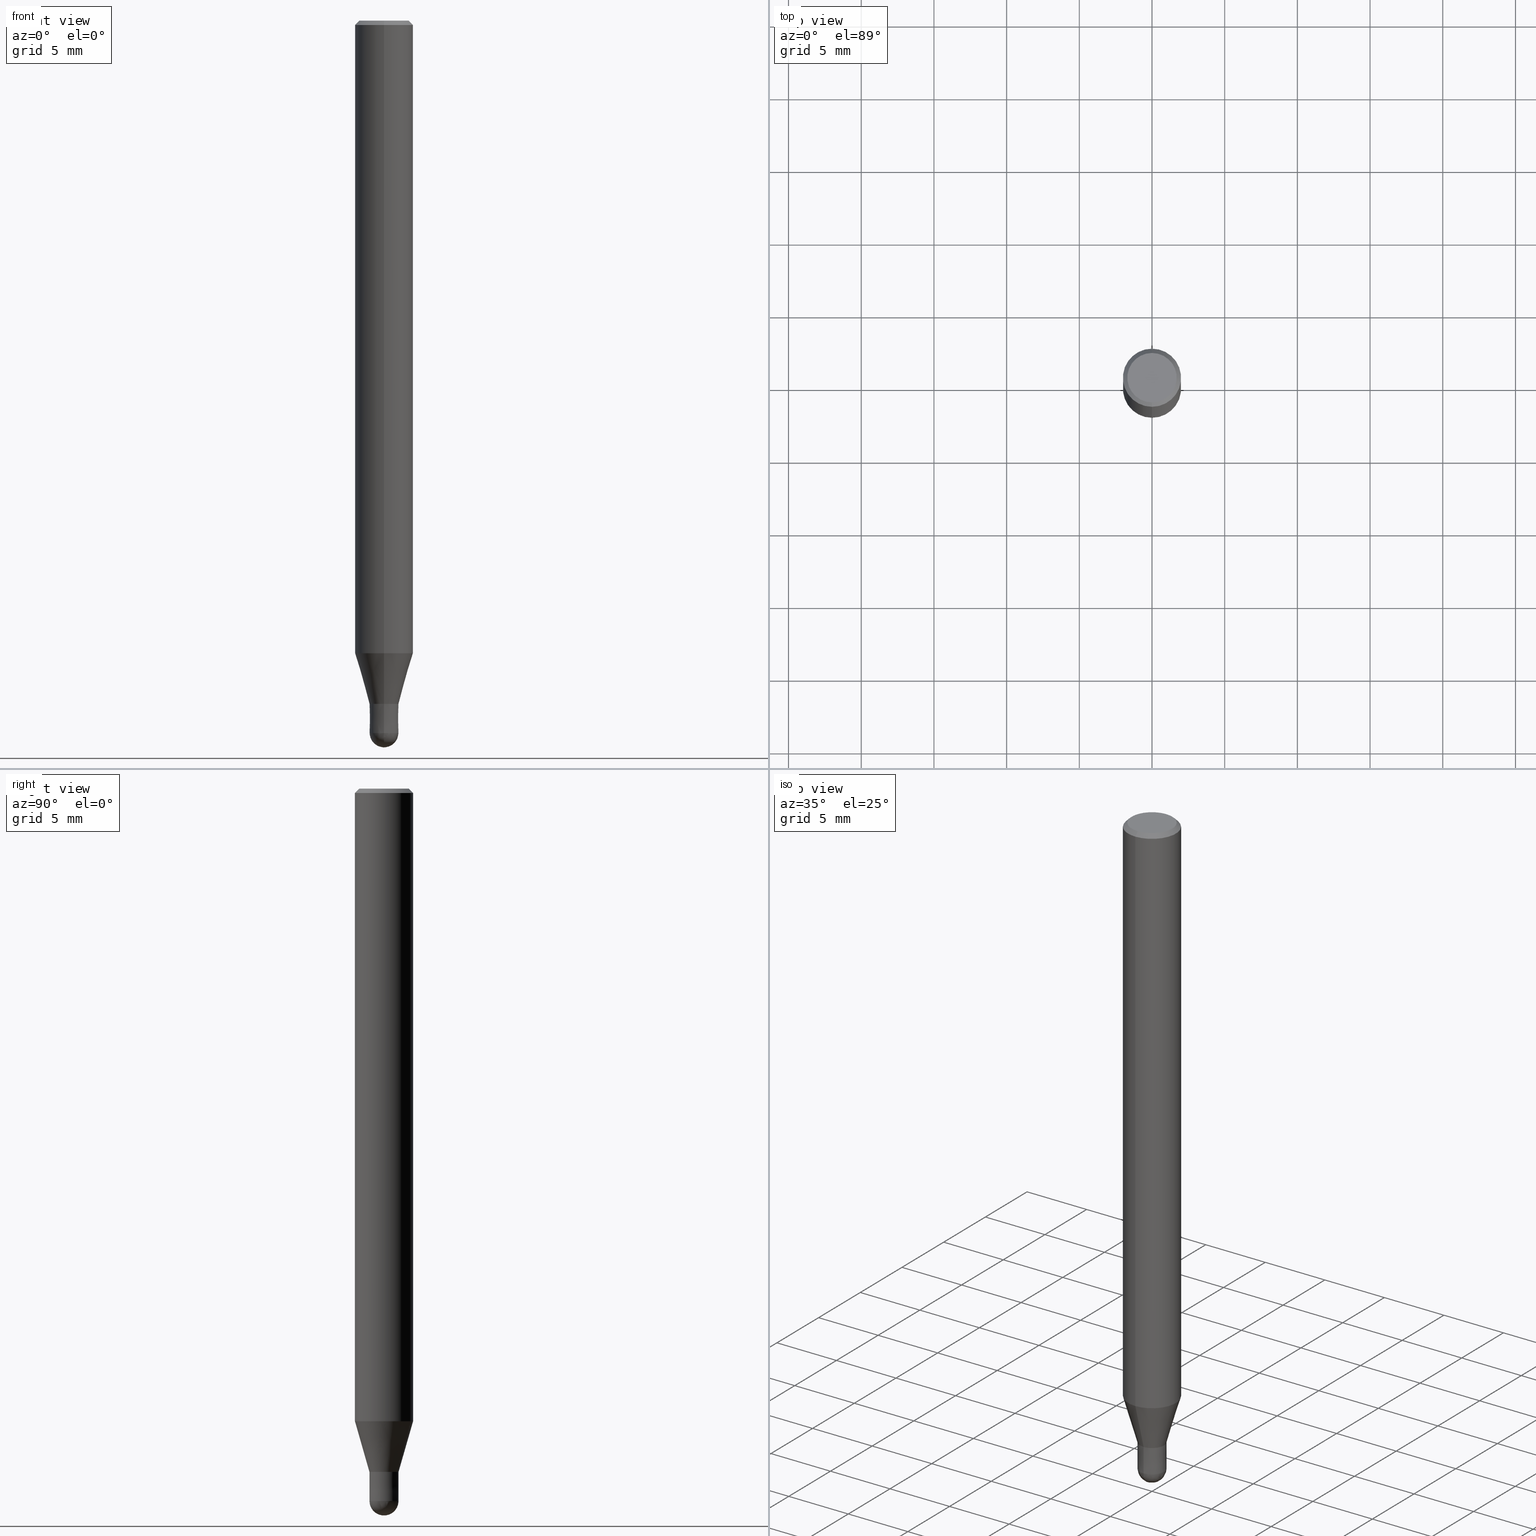
[diagram: canonical four-view strip — front | top / right | iso, engineering-drawing reading convention]
A machine part, canonical four-view strip (front | top / right | iso — engineering-drawing reading convention). The complete STEP part file that produces these views, byte-faithful:
ISO-10303-21;
HEADER;
FILE_DESCRIPTION(('no description'),'unknown implementation level');
FILE_NAME('HSB2020-0300-Huellk.stp','  ',('CIMSOURCE GmbH'),('CADClick - KiM GmbH - www.kimweb.de'),'unknown preprocess','ACIS','unknown authorization');
FILE_SCHEMA(('automotive_design'));
ENDSEC;
DATA;
#1=MECHANICAL_DESIGN_GEOMETRIC_PRESENTATION_REPRESENTATION(' ',(#14,#15,#16,#17,#18,#19,#20,#21,#22,#23,#24,#25,#26,#27,#28,#29,#30,#31,#32,#33,#34,#35,#36,#37,#38,#39,#40,#41,#42,#43,#44,#45,#46,#47,#48,#49,#50,#51,#52,#53,#54,#55,#56,#57,#58,#59,#60,#61,#62,#63,#64,#65,#66),#10);
#2=PRODUCT_DEFINITION_CONTEXT('',#67,'design');
#3=APPLICATION_PROTOCOL_DEFINITION('INTERNATIONAL STANDARD','automotive_design',1994,#67);
#4=PRODUCT_CATEGORY_RELATIONSHIP('NONE','NONE',#68,#69);
#5=SHAPE_DEFINITION_REPRESENTATION(#70,#71);
#6=PRODUCT_DEFINITION_CONTEXT('',#72,'design');
#7=APPLICATION_PROTOCOL_DEFINITION('INTERNATIONAL STANDARD','automotive_design',1994,#72);
#8=PRODUCT_CATEGORY_RELATIONSHIP('NONE','NONE',#73,#74);
#9=SHAPE_DEFINITION_REPRESENTATION(#75,#76);
#10= (GEOMETRIC_REPRESENTATION_CONTEXT(3)GLOBAL_UNCERTAINTY_ASSIGNED_CONTEXT((#79))GLOBAL_UNIT_ASSIGNED_CONTEXT((#81,#82,#83))REPRESENTATION_CONTEXT('NONE','WORKSPACE'));
#14=STYLED_ITEM('',(#85),#86);
#15=STYLED_ITEM('',(#87),#88);
#16=STYLED_ITEM('',(#89),#90);
#17=STYLED_ITEM('',(#91),#92);
#18=STYLED_ITEM('',(#93),#94);
#19=STYLED_ITEM('',(#95),#96);
#20=STYLED_ITEM('',(#97),#98);
#21=STYLED_ITEM('',(#99),#100);
#22=STYLED_ITEM('',(#101),#102);
#23=STYLED_ITEM('',(#103),#104);
#24=STYLED_ITEM('',(#105),#106);
#25=STYLED_ITEM('',(#107),#108);
#26=STYLED_ITEM('',(#109),#110);
#27=STYLED_ITEM('',(#111),#112);
#28=STYLED_ITEM('',(#113),#114);
#29=STYLED_ITEM('',(#115),#116);
#30=STYLED_ITEM('',(#117),#118);
#31=STYLED_ITEM('',(#119),#120);
#32=STYLED_ITEM('',(#121),#122);
#33=STYLED_ITEM('',(#123),#124);
#34=STYLED_ITEM('',(#125),#126);
#35=STYLED_ITEM('',(#127),#128);
#36=STYLED_ITEM('',(#129),#130);
#37=STYLED_ITEM('',(#131),#132);
#38=STYLED_ITEM('',(#133),#134);
#39=STYLED_ITEM('',(#135),#136);
#40=STYLED_ITEM('',(#137),#138);
#41=STYLED_ITEM('',(#139),#140);
#42=STYLED_ITEM('',(#141),#142);
#43=STYLED_ITEM('',(#143),#144);
#44=STYLED_ITEM('',(#145),#146);
#45=STYLED_ITEM('',(#147),#148);
#46=STYLED_ITEM('',(#149),#150);
#47=STYLED_ITEM('',(#151),#152);
#48=STYLED_ITEM('',(#153),#154);
#49=STYLED_ITEM('',(#155),#156);
#50=STYLED_ITEM('',(#157),#158);
#51=STYLED_ITEM('',(#159),#160);
#52=STYLED_ITEM('',(#161),#162);
#53=STYLED_ITEM('',(#163),#164);
#54=STYLED_ITEM('',(#165),#166);
#55=STYLED_ITEM('',(#167),#168);
#56=STYLED_ITEM('',(#169),#170);
#57=STYLED_ITEM('',(#171),#172);
#58=STYLED_ITEM('',(#173),#174);
#59=STYLED_ITEM('',(#175),#176);
#60=STYLED_ITEM('',(#177),#178);
#61=STYLED_ITEM('',(#179),#180);
#62=STYLED_ITEM('',(#181),#182);
#63=STYLED_ITEM('',(#183),#184);
#64=STYLED_ITEM('',(#185),#186);
#65=STYLED_ITEM('',(#187),#188);
#66=STYLED_ITEM('',(#189),#190);
#67=APPLICATION_CONTEXT(' ');
#68=PRODUCT_CATEGORY('part','NONE');
#69=PRODUCT_RELATED_PRODUCT_CATEGORY('detail',' ',(#191));
#70=PRODUCT_DEFINITION_SHAPE('NONE','NONE',#192);
#71=ADVANCED_BREP_SHAPE_REPRESENTATION('1',(#166,#193),#10);
#72=APPLICATION_CONTEXT(' ');
#73=PRODUCT_CATEGORY('part','NONE');
#74=PRODUCT_RELATED_PRODUCT_CATEGORY('detail',' ',(#194));
#75=PRODUCT_DEFINITION_SHAPE('NONE','NONE',#195);
#76=ADVANCED_BREP_SHAPE_REPRESENTATION('2',(#104,#196),#10);
#79=UNCERTAINTY_MEASURE_WITH_UNIT(LENGTH_MEASURE(1.0E-006),#81,'','');
#81= (CONVERSION_BASED_UNIT('MILLIMETRE',#199)LENGTH_UNIT()NAMED_UNIT(#202));
#82= (NAMED_UNIT(#204)PLANE_ANGLE_UNIT()SI_UNIT($,.RADIAN.));
#83= (NAMED_UNIT(#204)SOLID_ANGLE_UNIT()SI_UNIT($,.STERADIAN.));
#85=PRESENTATION_STYLE_ASSIGNMENT((#210));
#86=VERTEX_POINT('',#211);
#87=PRESENTATION_STYLE_ASSIGNMENT((#212));
#88=ADVANCED_FACE('',(#213,#214),#215,.T.);
#89=PRESENTATION_STYLE_ASSIGNMENT((#216));
#90=VERTEX_POINT('',#217);
#91=PRESENTATION_STYLE_ASSIGNMENT((#218));
#92=EDGE_CURVE('',#160,#176,#219,.T.);
#93=PRESENTATION_STYLE_ASSIGNMENT((#220));
#94=VERTEX_POINT('',#221);
#95=PRESENTATION_STYLE_ASSIGNMENT((#222));
#96=EDGE_CURVE('',#190,#150,#223,.T.);
#97=PRESENTATION_STYLE_ASSIGNMENT((#224));
#98=EDGE_CURVE('',#86,#190,#225,.T.);
#99=PRESENTATION_STYLE_ASSIGNMENT((#226));
#100=ADVANCED_FACE('',(#227),#228,.T.);
#101=PRESENTATION_STYLE_ASSIGNMENT((#229));
#102=EDGE_CURVE('',#176,#90,#230,.T.);
#103=PRESENTATION_STYLE_ASSIGNMENT((#231));
#104=MANIFOLD_SOLID_BREP('2',#232);
#105=PRESENTATION_STYLE_ASSIGNMENT((#233));
#106=EDGE_CURVE('',#94,#186,#234,.T.);
#107=PRESENTATION_STYLE_ASSIGNMENT((#235));
#108=VERTEX_POINT('',#236);
#109=PRESENTATION_STYLE_ASSIGNMENT((#237));
#110=EDGE_CURVE('',#150,#190,#238,.T.);
#111=PRESENTATION_STYLE_ASSIGNMENT((#239));
#112=VERTEX_POINT('',#240);
#113=PRESENTATION_STYLE_ASSIGNMENT((#241));
#114=EDGE_CURVE('',#94,#138,#242,.T.);
#115=PRESENTATION_STYLE_ASSIGNMENT((#243));
#116=EDGE_CURVE('',#160,#132,#244,.T.);
#117=PRESENTATION_STYLE_ASSIGNMENT((#245));
#118=EDGE_CURVE('',#86,#158,#246,.T.);
#119=PRESENTATION_STYLE_ASSIGNMENT((#247));
#120=ADVANCED_FACE('',(#248),#249,.T.);
#121=PRESENTATION_STYLE_ASSIGNMENT((#250));
#122=ADVANCED_FACE('',(#251),#252,.T.);
#123=PRESENTATION_STYLE_ASSIGNMENT((#253));
#124=EDGE_CURVE('',#108,#112,#254,.T.);
#125=PRESENTATION_STYLE_ASSIGNMENT((#255));
#126=ADVANCED_FACE('',(#256),#257,.T.);
#127=PRESENTATION_STYLE_ASSIGNMENT((#258));
#128=EDGE_CURVE('',#112,#186,#259,.T.);
#129=PRESENTATION_STYLE_ASSIGNMENT((#260));
#130=EDGE_CURVE('',#138,#112,#261,.T.);
#131=PRESENTATION_STYLE_ASSIGNMENT((#262));
#132=VERTEX_POINT('',#263);
#133=PRESENTATION_STYLE_ASSIGNMENT((#264));
#134=EDGE_CURVE('',#160,#132,#265,.T.);
#135=PRESENTATION_STYLE_ASSIGNMENT((#266));
#136=ADVANCED_FACE('',(#267),#268,.T.);
#137=PRESENTATION_STYLE_ASSIGNMENT((#269));
#138=VERTEX_POINT('',#270);
#139=PRESENTATION_STYLE_ASSIGNMENT((#271));
#140=ADVANCED_FACE('',(#272),#273,.T.);
#141=PRESENTATION_STYLE_ASSIGNMENT((#274));
#142=EDGE_CURVE('',#112,#138,#275,.T.);
#143=PRESENTATION_STYLE_ASSIGNMENT((#276));
#144=EDGE_CURVE('',#132,#160,#277,.T.);
#145=PRESENTATION_STYLE_ASSIGNMENT((#278));
#146=ADVANCED_FACE('',(#279),#280,.T.);
#147=PRESENTATION_STYLE_ASSIGNMENT((#281));
#148=EDGE_CURVE('',#108,#174,#282,.T.);
#149=PRESENTATION_STYLE_ASSIGNMENT((#283));
#150=VERTEX_POINT('',#284);
#151=PRESENTATION_STYLE_ASSIGNMENT((#285));
#152=EDGE_CURVE('',#158,#86,#286,.T.);
#153=PRESENTATION_STYLE_ASSIGNMENT((#287));
#154=EDGE_CURVE('',#138,#174,#288,.T.);
#155=PRESENTATION_STYLE_ASSIGNMENT((#289));
#156=ADVANCED_FACE('',(#290),#291,.T.);
#157=PRESENTATION_STYLE_ASSIGNMENT((#292));
#158=VERTEX_POINT('',#293);
#159=PRESENTATION_STYLE_ASSIGNMENT((#294));
#160=VERTEX_POINT('',#295);
#161=PRESENTATION_STYLE_ASSIGNMENT((#296));
#162=EDGE_CURVE('',#150,#158,#297,.T.);
#163=PRESENTATION_STYLE_ASSIGNMENT((#298));
#164=EDGE_CURVE('',#90,#132,#299,.T.);
#165=PRESENTATION_STYLE_ASSIGNMENT((#300));
#166=MANIFOLD_SOLID_BREP('1',#301);
#167=PRESENTATION_STYLE_ASSIGNMENT((#302));
#168=ADVANCED_FACE('',(#303),#304,.T.);
#169=PRESENTATION_STYLE_ASSIGNMENT((#305));
#170=EDGE_CURVE('',#90,#176,#306,.T.);
#171=PRESENTATION_STYLE_ASSIGNMENT((#307));
#172=EDGE_CURVE('',#186,#94,#308,.T.);
#173=PRESENTATION_STYLE_ASSIGNMENT((#309));
#174=VERTEX_POINT('',#310);
#175=PRESENTATION_STYLE_ASSIGNMENT((#311));
#176=VERTEX_POINT('',#312);
#177=PRESENTATION_STYLE_ASSIGNMENT((#313));
#178=EDGE_CURVE('',#174,#108,#314,.T.);
#179=PRESENTATION_STYLE_ASSIGNMENT((#315));
#180=ADVANCED_FACE('',(#316),#317,.T.);
#181=PRESENTATION_STYLE_ASSIGNMENT((#318));
#182=ADVANCED_FACE('',(#319),#320,.T.);
#183=PRESENTATION_STYLE_ASSIGNMENT((#321));
#184=ADVANCED_FACE('',(#322),#323,.T.);
#185=PRESENTATION_STYLE_ASSIGNMENT((#324));
#186=VERTEX_POINT('',#325);
#187=PRESENTATION_STYLE_ASSIGNMENT((#326));
#188=ADVANCED_FACE('',(#327),#328,.T.);
#189=PRESENTATION_STYLE_ASSIGNMENT((#329));
#190=VERTEX_POINT('',#330);
#191=PRODUCT('1','1','PART-1-DESC',(#331));
#192=PRODUCT_DEFINITION('NONE','NONE',#332,#2);
#193=AXIS2_PLACEMENT_3D('',#333,#334,#335);
#194=PRODUCT('2','2','PART-2-DESC',(#336));
#195=PRODUCT_DEFINITION('NONE','NONE',#337,#6);
#196=AXIS2_PLACEMENT_3D('',#338,#339,#340);
#199=LENGTH_MEASURE_WITH_UNIT(LENGTH_MEASURE(1.0),#341);
#202=DIMENSIONAL_EXPONENTS(1.0,0.0,0.0,0.0,0.0,0.0,0.0);
#204=DIMENSIONAL_EXPONENTS(0.0,0.0,0.0,0.0,0.0,0.0,0.0);
#210=POINT_STYLE(' ',#342,POSITIVE_LENGTH_MEASURE(1.0E-006),#343);
#211=CARTESIAN_POINT('',(1.22454512350469E-016,-0.99995,-47.0));
#212=SURFACE_STYLE_USAGE(.BOTH.,#344);
#213=FACE_OUTER_BOUND('',#345,.T.);
#214=FACE_BOUND('',#346,.T.);
#215=PLANE('',#347);
#216=POINT_STYLE(' ',#348,POSITIVE_LENGTH_MEASURE(1.0E-006),#349);
#217=CARTESIAN_POINT('',(0.0,0.9999,-47.0));
#218=CURVE_STYLE('',#350,POSITIVE_LENGTH_MEASURE(1.0E-006),#351);
#219=LINE('',#352,#353);
#220=POINT_STYLE(' ',#354,POSITIVE_LENGTH_MEASURE(1.0E-006),#355);
#221=CARTESIAN_POINT('',(0.0,1.7,0.0));
#222=CURVE_STYLE('',#356,POSITIVE_LENGTH_MEASURE(1.0E-006),#357);
#223=CIRCLE('',#358,1.99995);
#224=CURVE_STYLE('',#359,POSITIVE_LENGTH_MEASURE(1.0E-006),#360);
#225=LINE('',#361,#362);
#226=SURFACE_STYLE_USAGE(.BOTH.,#363);
#227=FACE_OUTER_BOUND('',#364,.T.);
#228=SPHERICAL_SURFACE('',#365,1.0);
#229=CURVE_STYLE('',#366,POSITIVE_LENGTH_MEASURE(1.0E-006),#367);
#230=CIRCLE('',#368,0.9999);
#231=SURFACE_STYLE_USAGE(.BOTH.,#369);
#232=CLOSED_SHELL('',(#180,#120,#182,#168,#100));
#233=CURVE_STYLE('',#370,POSITIVE_LENGTH_MEASURE(1.0E-006),#371);
#234=CIRCLE('',#372,1.7);
#235=POINT_STYLE(' ',#373,POSITIVE_LENGTH_MEASURE(1.0E-006),#374);
#236=CARTESIAN_POINT('',(2.44921270764475E-016,-2.0,-43.513));
#237=CURVE_STYLE('',#375,POSITIVE_LENGTH_MEASURE(1.0E-006),#376);
#238=CIRCLE('',#377,1.99995);
#239=POINT_STYLE(' ',#378,POSITIVE_LENGTH_MEASURE(1.0E-006),#379);
#240=CARTESIAN_POINT('',(2.44921270764475E-016,-2.0,-0.299999999999997));
#241=CURVE_STYLE('',#380,POSITIVE_LENGTH_MEASURE(1.0E-006),#381);
#242=LINE('',#382,#383);
#243=CURVE_STYLE('',#384,POSITIVE_LENGTH_MEASURE(1.0E-006),#385);
#244=CIRCLE('',#386,1.0);
#245=CURVE_STYLE('',#387,POSITIVE_LENGTH_MEASURE(1.0E-006),#388);
#246=CIRCLE('',#389,0.99995);
#247=SURFACE_STYLE_USAGE(.BOTH.,#390);
#248=FACE_OUTER_BOUND('',#391,.T.);
#249=CONICAL_SURFACE('',#392,0.99995,4.99999999583278E-005);
#250=SURFACE_STYLE_USAGE(.BOTH.,#393);
#251=FACE_OUTER_BOUND('',#394,.T.);
#252=CONICAL_SURFACE('',#395,1.85,0.785398163397453);
#253=CURVE_STYLE('',#396,POSITIVE_LENGTH_MEASURE(1.0E-006),#397);
#254=LINE('',#398,#399);
#255=SURFACE_STYLE_USAGE(.BOTH.,#400);
#256=FACE_OUTER_BOUND('',#401,.T.);
#257=CONICAL_SURFACE('',#402,1.85,0.785398163397453);
#258=CURVE_STYLE('',#403,POSITIVE_LENGTH_MEASURE(1.0E-006),#404);
#259=LINE('',#405,#406);
#260=CURVE_STYLE('',#407,POSITIVE_LENGTH_MEASURE(1.0E-006),#408);
#261=CIRCLE('',#409,2.0);
#262=POINT_STYLE(' ',#410,POSITIVE_LENGTH_MEASURE(1.0E-006),#411);
#263=CARTESIAN_POINT('',(0.0,1.0,-49.0));
#264=CURVE_STYLE('',#412,POSITIVE_LENGTH_MEASURE(1.0E-006),#413);
#265=CIRCLE('',#414,1.0);
#266=SURFACE_STYLE_USAGE(.BOTH.,#415);
#267=FACE_OUTER_BOUND('',#416,.T.);
#268=CYLINDRICAL_SURFACE('',#417,2.0);
#269=POINT_STYLE(' ',#418,POSITIVE_LENGTH_MEASURE(1.0E-006),#419);
#270=CARTESIAN_POINT('',(0.0,2.0,-0.299999999999997));
#271=SURFACE_STYLE_USAGE(.BOTH.,#420);
#272=FACE_OUTER_BOUND('',#421,.T.);
#273=CONICAL_SURFACE('',#422,1.49995,0.279284171542493);
#274=CURVE_STYLE('',#423,POSITIVE_LENGTH_MEASURE(1.0E-006),#424);
#275=CIRCLE('',#425,2.0);
#276=CURVE_STYLE('',#426,POSITIVE_LENGTH_MEASURE(1.0E-006),#427);
#277=CIRCLE('',#428,1.0);
#278=SURFACE_STYLE_USAGE(.BOTH.,#429);
#279=FACE_OUTER_BOUND('',#430,.T.);
#280=PLANE('',#431);
#281=CURVE_STYLE('',#432,POSITIVE_LENGTH_MEASURE(1.0E-006),#433);
#282=CIRCLE('',#434,2.0);
#283=POINT_STYLE(' ',#435,POSITIVE_LENGTH_MEASURE(1.0E-006),#436);
#284=CARTESIAN_POINT('',(0.0,1.99995,-43.513));
#285=CURVE_STYLE('',#437,POSITIVE_LENGTH_MEASURE(1.0E-006),#438);
#286=CIRCLE('',#439,0.99995);
#287=CURVE_STYLE('',#440,POSITIVE_LENGTH_MEASURE(1.0E-006),#441);
#288=LINE('',#442,#443);
#289=SURFACE_STYLE_USAGE(.BOTH.,#444);
#290=FACE_OUTER_BOUND('',#445,.T.);
#291=PLANE('',#446);
#292=POINT_STYLE(' ',#447,POSITIVE_LENGTH_MEASURE(1.0E-006),#448);
#293=CARTESIAN_POINT('',(0.0,0.99995,-47.0));
#294=POINT_STYLE(' ',#449,POSITIVE_LENGTH_MEASURE(1.0E-006),#450);
#295=CARTESIAN_POINT('',(1.22460635382238E-016,-1.0,-49.0));
#296=CURVE_STYLE('',#451,POSITIVE_LENGTH_MEASURE(1.0E-006),#452);
#297=LINE('',#453,#454);
#298=CURVE_STYLE('',#455,POSITIVE_LENGTH_MEASURE(1.0E-006),#456);
#299=LINE('',#457,#458);
#300=SURFACE_STYLE_USAGE(.BOTH.,#459);
#301=CLOSED_SHELL('',(#188,#184,#126,#88,#156,#122,#136,#140,#146));
#302=SURFACE_STYLE_USAGE(.BOTH.,#460);
#303=FACE_OUTER_BOUND('',#461,.T.);
#304=CONICAL_SURFACE('',#462,0.99995,4.99999999583278E-005);
#305=CURVE_STYLE('',#463,POSITIVE_LENGTH_MEASURE(1.0E-006),#464);
#306=CIRCLE('',#465,0.9999);
#307=CURVE_STYLE('',#466,POSITIVE_LENGTH_MEASURE(1.0E-006),#467);
#308=CIRCLE('',#468,1.7);
#309=POINT_STYLE(' ',#469,POSITIVE_LENGTH_MEASURE(1.0E-006),#470);
#310=CARTESIAN_POINT('',(0.0,2.0,-43.513));
#311=POINT_STYLE(' ',#471,POSITIVE_LENGTH_MEASURE(1.0E-006),#472);
#312=CARTESIAN_POINT('',(1.224483893187E-016,-0.9999,-47.0));
#313=CURVE_STYLE('',#473,POSITIVE_LENGTH_MEASURE(1.0E-006),#474);
#314=CIRCLE('',#475,2.0);
#315=SURFACE_STYLE_USAGE(.BOTH.,#476);
#316=FACE_OUTER_BOUND('',#477,.T.);
#317=SPHERICAL_SURFACE('',#478,1.0);
#318=SURFACE_STYLE_USAGE(.BOTH.,#479);
#319=FACE_OUTER_BOUND('',#480,.T.);
#320=PLANE('',#481);
#321=SURFACE_STYLE_USAGE(.BOTH.,#482);
#322=FACE_OUTER_BOUND('',#483,.T.);
#323=CYLINDRICAL_SURFACE('',#484,2.0);
#324=POINT_STYLE(' ',#485,POSITIVE_LENGTH_MEASURE(1.0E-006),#486);
#325=CARTESIAN_POINT('',(2.08183080149804E-016,-1.7,0.0));
#326=SURFACE_STYLE_USAGE(.BOTH.,#487);
#327=FACE_OUTER_BOUND('',#488,.T.);
#328=CONICAL_SURFACE('',#489,1.49995,0.279284171542493);
#329=POINT_STYLE(' ',#490,POSITIVE_LENGTH_MEASURE(1.0E-006),#491);
#330=CARTESIAN_POINT('',(2.44915147732706E-016,-1.99995,-43.513));
#331=PRODUCT_CONTEXT('',#67,'mechanical');
#332=PRODUCT_DEFINITION_FORMATION_WITH_SPECIFIED_SOURCE(' ','NONE',#191,.NOT_KNOWN.);
#333=CARTESIAN_POINT('',(0.0,0.0,0.0));
#334=DIRECTION('',(0.0,0.0,1.0));
#335=DIRECTION('',(1.0,0.0,0.0));
#336=PRODUCT_CONTEXT('',#72,'mechanical');
#337=PRODUCT_DEFINITION_FORMATION_WITH_SPECIFIED_SOURCE(' ','NONE',#194,.NOT_KNOWN.);
#338=CARTESIAN_POINT('',(0.0,0.0,0.0));
#339=DIRECTION('',(0.0,0.0,1.0));
#340=DIRECTION('',(1.0,0.0,0.0));
#341= (NAMED_UNIT(#202)LENGTH_UNIT()SI_UNIT(.MILLI.,.METRE.));
#342=PRE_DEFINED_MARKER('');
#343=COLOUR_RGB('',0.498039215803146,0.498039215803146,0.498039215803146);
#344=SURFACE_SIDE_STYLE('',(#493));
#345=EDGE_LOOP('',(#494,#495));
#346=EDGE_LOOP('',(#496,#497));
#347=AXIS2_PLACEMENT_3D('',#498,#499,#500);
#348=PRE_DEFINED_MARKER('');
#349=COLOUR_RGB('',0.800000011920929,0.800000011920929,0.800000011920929);
#350=DRAUGHTING_PRE_DEFINED_CURVE_FONT('continuous');
#351=COLOUR_RGB('',0.800000011920929,0.800000011920929,0.800000011920929);
#352=CARTESIAN_POINT('',(1.22454512350469E-016,-0.99995,-48.0));
#353=VECTOR('',#501,1.0);
#354=PRE_DEFINED_MARKER('');
#355=COLOUR_RGB('',0.498039215803146,0.498039215803146,0.498039215803146);
#356=DRAUGHTING_PRE_DEFINED_CURVE_FONT('continuous');
#357=COLOUR_RGB('',0.498039215803146,0.498039215803146,0.498039215803146);
#358=AXIS2_PLACEMENT_3D('',#502,#503,#504);
#359=DRAUGHTING_PRE_DEFINED_CURVE_FONT('continuous');
#360=COLOUR_RGB('',0.498039215803146,0.498039215803146,0.498039215803146);
#361=CARTESIAN_POINT('',(1.83684830041587E-016,-1.49995,-45.2565));
#362=VECTOR('',#505,1.0);
#363=SURFACE_SIDE_STYLE('',(#506));
#364=EDGE_LOOP('',(#507,#508));
#365=AXIS2_PLACEMENT_3D('',#509,#510,#511);
#366=DRAUGHTING_PRE_DEFINED_CURVE_FONT('continuous');
#367=COLOUR_RGB('',0.800000011920929,0.800000011920929,0.800000011920929);
#368=AXIS2_PLACEMENT_3D('',#512,#513,#514);
#369=SURFACE_SIDE_STYLE('',(#515));
#370=DRAUGHTING_PRE_DEFINED_CURVE_FONT('continuous');
#371=COLOUR_RGB('',0.498039215803146,0.498039215803146,0.498039215803146);
#372=AXIS2_PLACEMENT_3D('',#516,#517,#518);
#373=PRE_DEFINED_MARKER('');
#374=COLOUR_RGB('',0.498039215803146,0.498039215803146,0.498039215803146);
#375=DRAUGHTING_PRE_DEFINED_CURVE_FONT('continuous');
#376=COLOUR_RGB('',0.498039215803146,0.498039215803146,0.498039215803146);
#377=AXIS2_PLACEMENT_3D('',#519,#520,#521);
#378=PRE_DEFINED_MARKER('');
#379=COLOUR_RGB('',0.498039215803146,0.498039215803146,0.498039215803146);
#380=DRAUGHTING_PRE_DEFINED_CURVE_FONT('continuous');
#381=COLOUR_RGB('',0.498039215803146,0.498039215803146,0.498039215803146);
#382=CARTESIAN_POINT('',(-2.2655217545714E-016,1.85,-0.149999999999999));
#383=VECTOR('',#522,1.0);
#384=DRAUGHTING_PRE_DEFINED_CURVE_FONT('continuous');
#385=COLOUR_RGB('',0.800000011920929,0.800000011920929,0.800000011920929);
#386=AXIS2_PLACEMENT_3D('',#523,#524,#525);
#387=DRAUGHTING_PRE_DEFINED_CURVE_FONT('continuous');
#388=COLOUR_RGB('',0.498039215803146,0.498039215803146,0.498039215803146);
#389=AXIS2_PLACEMENT_3D('',#526,#527,#528);
#390=SURFACE_SIDE_STYLE('',(#529));
#391=EDGE_LOOP('',(#530,#531,#532,#533));
#392=AXIS2_PLACEMENT_3D('',#534,#535,#536);
#393=SURFACE_SIDE_STYLE('',(#537));
#394=EDGE_LOOP('',(#538,#539,#540,#541));
#395=AXIS2_PLACEMENT_3D('',#542,#543,#544);
#396=DRAUGHTING_PRE_DEFINED_CURVE_FONT('continuous');
#397=COLOUR_RGB('',0.498039215803146,0.498039215803146,0.498039215803146);
#398=CARTESIAN_POINT('',(2.44921270764475E-016,-2.0,-21.9065));
#399=VECTOR('',#545,1.0);
#400=SURFACE_SIDE_STYLE('',(#546));
#401=EDGE_LOOP('',(#547,#548,#549,#550));
#402=AXIS2_PLACEMENT_3D('',#551,#552,#553);
#403=DRAUGHTING_PRE_DEFINED_CURVE_FONT('continuous');
#404=COLOUR_RGB('',0.498039215803146,0.498039215803146,0.498039215803146);
#405=CARTESIAN_POINT('',(2.2655217545714E-016,-1.85,-0.149999999999999));
#406=VECTOR('',#554,1.0);
#407=DRAUGHTING_PRE_DEFINED_CURVE_FONT('continuous');
#408=COLOUR_RGB('',0.498039215803146,0.498039215803146,0.498039215803146);
#409=AXIS2_PLACEMENT_3D('',#555,#556,#557);
#410=PRE_DEFINED_MARKER('');
#411=COLOUR_RGB('',0.800000011920929,0.800000011920929,0.800000011920929);
#412=DRAUGHTING_PRE_DEFINED_CURVE_FONT('continuous');
#413=COLOUR_RGB('',0.800000011920929,0.800000011920929,0.800000011920929);
#414=AXIS2_PLACEMENT_3D('',#558,#559,#560);
#415=SURFACE_SIDE_STYLE('',(#561));
#416=EDGE_LOOP('',(#562,#563,#564,#565));
#417=AXIS2_PLACEMENT_3D('',#566,#567,#568);
#418=PRE_DEFINED_MARKER('');
#419=COLOUR_RGB('',0.498039215803146,0.498039215803146,0.498039215803146);
#420=SURFACE_SIDE_STYLE('',(#569));
#421=EDGE_LOOP('',(#570,#571,#572,#573));
#422=AXIS2_PLACEMENT_3D('',#574,#575,#576);
#423=DRAUGHTING_PRE_DEFINED_CURVE_FONT('continuous');
#424=COLOUR_RGB('',0.498039215803146,0.498039215803146,0.498039215803146);
#425=AXIS2_PLACEMENT_3D('',#577,#578,#579);
#426=DRAUGHTING_PRE_DEFINED_CURVE_FONT('continuous');
#427=COLOUR_RGB('',0.800000011920929,0.800000011920929,0.800000011920929);
#428=AXIS2_PLACEMENT_3D('',#580,#581,#582);
#429=SURFACE_SIDE_STYLE('',(#583));
#430=EDGE_LOOP('',(#584,#585));
#431=AXIS2_PLACEMENT_3D('',#586,#587,#588);
#432=DRAUGHTING_PRE_DEFINED_CURVE_FONT('continuous');
#433=COLOUR_RGB('',0.498039215803146,0.498039215803146,0.498039215803146);
#434=AXIS2_PLACEMENT_3D('',#589,#590,#591);
#435=PRE_DEFINED_MARKER('');
#436=COLOUR_RGB('',0.498039215803146,0.498039215803146,0.498039215803146);
#437=DRAUGHTING_PRE_DEFINED_CURVE_FONT('continuous');
#438=COLOUR_RGB('',0.498039215803146,0.498039215803146,0.498039215803146);
#439=AXIS2_PLACEMENT_3D('',#592,#593,#594);
#440=DRAUGHTING_PRE_DEFINED_CURVE_FONT('continuous');
#441=COLOUR_RGB('',0.498039215803146,0.498039215803146,0.498039215803146);
#442=CARTESIAN_POINT('',(-2.44921270764475E-016,2.0,-21.9065));
#443=VECTOR('',#595,1.0);
#444=SURFACE_SIDE_STYLE('',(#596));
#445=EDGE_LOOP('',(#597,#598));
#446=AXIS2_PLACEMENT_3D('',#599,#600,#601);
#447=PRE_DEFINED_MARKER('');
#448=COLOUR_RGB('',0.498039215803146,0.498039215803146,0.498039215803146);
#449=PRE_DEFINED_MARKER('');
#450=COLOUR_RGB('',0.800000011920929,0.800000011920929,0.800000011920929);
#451=DRAUGHTING_PRE_DEFINED_CURVE_FONT('continuous');
#452=COLOUR_RGB('',0.498039215803146,0.498039215803146,0.498039215803146);
#453=CARTESIAN_POINT('',(-1.83684830041587E-016,1.49995,-45.2565));
#454=VECTOR('',#602,1.0);
#455=DRAUGHTING_PRE_DEFINED_CURVE_FONT('continuous');
#456=COLOUR_RGB('',0.800000011920929,0.800000011920929,0.800000011920929);
#457=CARTESIAN_POINT('',(-1.22454512350469E-016,0.99995,-48.0));
#458=VECTOR('',#603,1.0);
#459=SURFACE_SIDE_STYLE('',(#604));
#460=SURFACE_SIDE_STYLE('',(#605));
#461=EDGE_LOOP('',(#606,#607,#608,#609));
#462=AXIS2_PLACEMENT_3D('',#610,#611,#612);
#463=DRAUGHTING_PRE_DEFINED_CURVE_FONT('continuous');
#464=COLOUR_RGB('',0.800000011920929,0.800000011920929,0.800000011920929);
#465=AXIS2_PLACEMENT_3D('',#613,#614,#615);
#466=DRAUGHTING_PRE_DEFINED_CURVE_FONT('continuous');
#467=COLOUR_RGB('',0.498039215803146,0.498039215803146,0.498039215803146);
#468=AXIS2_PLACEMENT_3D('',#616,#617,#618);
#469=PRE_DEFINED_MARKER('');
#470=COLOUR_RGB('',0.498039215803146,0.498039215803146,0.498039215803146);
#471=PRE_DEFINED_MARKER('');
#472=COLOUR_RGB('',0.800000011920929,0.800000011920929,0.800000011920929);
#473=DRAUGHTING_PRE_DEFINED_CURVE_FONT('continuous');
#474=COLOUR_RGB('',0.498039215803146,0.498039215803146,0.498039215803146);
#475=AXIS2_PLACEMENT_3D('',#619,#620,#621);
#476=SURFACE_SIDE_STYLE('',(#622));
#477=EDGE_LOOP('',(#623,#624));
#478=AXIS2_PLACEMENT_3D('',#625,#626,#627);
#479=SURFACE_SIDE_STYLE('',(#628));
#480=EDGE_LOOP('',(#629,#630));
#481=AXIS2_PLACEMENT_3D('',#631,#632,#633);
#482=SURFACE_SIDE_STYLE('',(#634));
#483=EDGE_LOOP('',(#635,#636,#637,#638));
#484=AXIS2_PLACEMENT_3D('',#639,#640,#641);
#485=PRE_DEFINED_MARKER('');
#486=COLOUR_RGB('',0.498039215803146,0.498039215803146,0.498039215803146);
#487=SURFACE_SIDE_STYLE('',(#642));
#488=EDGE_LOOP('',(#643,#644,#645,#646));
#489=AXIS2_PLACEMENT_3D('',#647,#648,#649);
#490=PRE_DEFINED_MARKER('');
#491=COLOUR_RGB('',0.498039215803146,0.498039215803146,0.498039215803146);
#493=SURFACE_STYLE_FILL_AREA(#650);
#494=ORIENTED_EDGE('',*,*,#178,.T.);
#495=ORIENTED_EDGE('',*,*,#148,.T.);
#496=ORIENTED_EDGE('',*,*,#110,.F.);
#497=ORIENTED_EDGE('',*,*,#96,.F.);
#498=CARTESIAN_POINT('',(0.0,1.0,-43.513));
#499=DIRECTION('',(0.0,0.0,-1.0));
#500=DIRECTION('',(0.0,1.0,0.0));
#501=DIRECTION('',(-6.12303176145742E-021,4.99999999374945E-005,0.99999999875));
#502=CARTESIAN_POINT('',(0.0,0.0,-43.513));
#503=DIRECTION('',(0.0,0.0,-1.0));
#504=DIRECTION('',(0.0,1.0,0.0));
#505=DIRECTION('',(3.3758432755158E-017,-0.275667626987133,0.961253015304131));
#506=SURFACE_STYLE_FILL_AREA(#651);
#507=ORIENTED_EDGE('',*,*,#116,.T.);
#508=ORIENTED_EDGE('',*,*,#144,.T.);
#509=CARTESIAN_POINT('',(0.0,0.0,-49.0));
#510=DIRECTION('',(0.0,1.0,0.0));
#511=DIRECTION('',(0.0,0.0,-1.0));
#512=CARTESIAN_POINT('',(0.0,0.0,-47.0));
#513=DIRECTION('',(0.0,0.0,-1.0));
#514=DIRECTION('',(0.0,1.0,0.0));
#515=SURFACE_STYLE_FILL_AREA(#652);
#516=CARTESIAN_POINT('',(0.0,0.0,0.0));
#517=DIRECTION('',(0.0,0.0,-1.0));
#518=DIRECTION('',(0.0,1.0,0.0));
#519=CARTESIAN_POINT('',(0.0,0.0,-43.513));
#520=DIRECTION('',(0.0,0.0,-1.0));
#521=DIRECTION('',(0.0,1.0,0.0));
#522=DIRECTION('',(-8.6592745707194E-017,0.707106781186551,-0.707106781186544));
#523=CARTESIAN_POINT('',(0.0,0.0,-49.0));
#524=DIRECTION('',(1.0,0.0,1.22460635382238E-016));
#525=DIRECTION('',(-1.22460635382238E-016,0.0,1.0));
#526=CARTESIAN_POINT('',(0.0,0.0,-47.0));
#527=DIRECTION('',(0.0,0.0,-1.0));
#528=DIRECTION('',(0.0,1.0,0.0));
#529=SURFACE_STYLE_FILL_AREA(#653);
#530=ORIENTED_EDGE('',*,*,#164,.F.);
#531=ORIENTED_EDGE('',*,*,#170,.T.);
#532=ORIENTED_EDGE('',*,*,#92,.F.);
#533=ORIENTED_EDGE('',*,*,#144,.F.);
#534=CARTESIAN_POINT('',(0.0,0.0,-48.0));
#535=DIRECTION('',(0.0,-0.0,-1.0));
#536=DIRECTION('',(0.0,1.0,0.0));
#537=SURFACE_STYLE_FILL_AREA(#654);
#538=ORIENTED_EDGE('',*,*,#114,.T.);
#539=ORIENTED_EDGE('',*,*,#142,.F.);
#540=ORIENTED_EDGE('',*,*,#128,.T.);
#541=ORIENTED_EDGE('',*,*,#172,.T.);
#542=CARTESIAN_POINT('',(0.0,0.0,-0.149999999999999));
#543=DIRECTION('',(0.0,-0.0,-1.0));
#544=DIRECTION('',(0.0,1.0,0.0));
#545=DIRECTION('',(-0.0,-0.0,1.0));
#546=SURFACE_STYLE_FILL_AREA(#655);
#547=ORIENTED_EDGE('',*,*,#114,.F.);
#548=ORIENTED_EDGE('',*,*,#106,.T.);
#549=ORIENTED_EDGE('',*,*,#128,.F.);
#550=ORIENTED_EDGE('',*,*,#130,.F.);
#551=CARTESIAN_POINT('',(0.0,0.0,-0.149999999999999));
#552=DIRECTION('',(0.0,-0.0,-1.0));
#553=DIRECTION('',(0.0,1.0,0.0));
#554=DIRECTION('',(-8.6592745707194E-017,0.707106781186551,0.707106781186544));
#555=CARTESIAN_POINT('',(0.0,0.0,-0.299999999999997));
#556=DIRECTION('',(0.0,0.0,-1.0));
#557=DIRECTION('',(0.0,1.0,0.0));
#558=CARTESIAN_POINT('',(0.0,0.0,-49.0));
#559=DIRECTION('',(0.0,0.0,-1.0));
#560=DIRECTION('',(0.0,1.0,0.0));
#561=SURFACE_STYLE_FILL_AREA(#656);
#562=ORIENTED_EDGE('',*,*,#154,.T.);
#563=ORIENTED_EDGE('',*,*,#148,.F.);
#564=ORIENTED_EDGE('',*,*,#124,.T.);
#565=ORIENTED_EDGE('',*,*,#142,.T.);
#566=CARTESIAN_POINT('',(0.0,0.0,-21.9065));
#567=DIRECTION('',(-0.0,-0.0,1.0));
#568=DIRECTION('',(0.0,1.0,0.0));
#569=SURFACE_STYLE_FILL_AREA(#657);
#570=ORIENTED_EDGE('',*,*,#162,.T.);
#571=ORIENTED_EDGE('',*,*,#118,.F.);
#572=ORIENTED_EDGE('',*,*,#98,.T.);
#573=ORIENTED_EDGE('',*,*,#96,.T.);
#574=CARTESIAN_POINT('',(0.0,0.0,-45.2565));
#575=DIRECTION('',(-0.0,-0.0,1.0));
#576=DIRECTION('',(0.0,1.0,0.0));
#577=CARTESIAN_POINT('',(0.0,0.0,-0.299999999999997));
#578=DIRECTION('',(0.0,0.0,-1.0));
#579=DIRECTION('',(0.0,1.0,0.0));
#580=CARTESIAN_POINT('',(0.0,0.0,-49.0));
#581=DIRECTION('',(0.0,0.0,-1.0));
#582=DIRECTION('',(0.0,1.0,0.0));
#583=SURFACE_STYLE_FILL_AREA(#658);
#584=ORIENTED_EDGE('',*,*,#152,.T.);
#585=ORIENTED_EDGE('',*,*,#118,.T.);
#586=CARTESIAN_POINT('',(0.0,0.499975,-47.0));
#587=DIRECTION('',(0.0,0.0,-1.0));
#588=DIRECTION('',(0.0,1.0,0.0));
#589=CARTESIAN_POINT('',(0.0,0.0,-43.513));
#590=DIRECTION('',(0.0,0.0,-1.0));
#591=DIRECTION('',(0.0,1.0,0.0));
#592=CARTESIAN_POINT('',(0.0,0.0,-47.0));
#593=DIRECTION('',(0.0,0.0,-1.0));
#594=DIRECTION('',(0.0,1.0,0.0));
#595=DIRECTION('',(0.0,0.0,-1.0));
#596=SURFACE_STYLE_FILL_AREA(#659);
#597=ORIENTED_EDGE('',*,*,#106,.F.);
#598=ORIENTED_EDGE('',*,*,#172,.F.);
#599=CARTESIAN_POINT('',(0.0,0.85,0.0));
#600=DIRECTION('',(-0.0,0.0,1.0));
#601=DIRECTION('',(0.0,-1.0,0.0));
#602=DIRECTION('',(3.3758432755158E-017,-0.275667626987133,-0.961253015304131));
#603=DIRECTION('',(-6.12303176145742E-021,4.99999999374945E-005,-0.99999999875));
#604=SURFACE_STYLE_FILL_AREA(#660);
#605=SURFACE_STYLE_FILL_AREA(#661);
#606=ORIENTED_EDGE('',*,*,#164,.T.);
#607=ORIENTED_EDGE('',*,*,#134,.F.);
#608=ORIENTED_EDGE('',*,*,#92,.T.);
#609=ORIENTED_EDGE('',*,*,#102,.T.);
#610=CARTESIAN_POINT('',(0.0,0.0,-48.0));
#611=DIRECTION('',(0.0,-0.0,-1.0));
#612=DIRECTION('',(0.0,1.0,0.0));
#613=CARTESIAN_POINT('',(0.0,0.0,-47.0));
#614=DIRECTION('',(0.0,0.0,-1.0));
#615=DIRECTION('',(0.0,1.0,0.0));
#616=CARTESIAN_POINT('',(0.0,0.0,0.0));
#617=DIRECTION('',(0.0,0.0,-1.0));
#618=DIRECTION('',(0.0,1.0,0.0));
#619=CARTESIAN_POINT('',(0.0,0.0,-43.513));
#620=DIRECTION('',(0.0,0.0,-1.0));
#621=DIRECTION('',(0.0,1.0,0.0));
#622=SURFACE_STYLE_FILL_AREA(#662);
#623=ORIENTED_EDGE('',*,*,#116,.F.);
#624=ORIENTED_EDGE('',*,*,#134,.T.);
#625=CARTESIAN_POINT('',(0.0,0.0,-49.0));
#626=DIRECTION('',(0.0,1.0,0.0));
#627=DIRECTION('',(0.0,0.0,-1.0));
#628=SURFACE_STYLE_FILL_AREA(#663);
#629=ORIENTED_EDGE('',*,*,#170,.F.);
#630=ORIENTED_EDGE('',*,*,#102,.F.);
#631=CARTESIAN_POINT('',(0.0,0.49995,-47.0));
#632=DIRECTION('',(-0.0,0.0,1.0));
#633=DIRECTION('',(0.0,-1.0,0.0));
#634=SURFACE_STYLE_FILL_AREA(#664);
#635=ORIENTED_EDGE('',*,*,#154,.F.);
#636=ORIENTED_EDGE('',*,*,#130,.T.);
#637=ORIENTED_EDGE('',*,*,#124,.F.);
#638=ORIENTED_EDGE('',*,*,#178,.F.);
#639=CARTESIAN_POINT('',(0.0,0.0,-21.9065));
#640=DIRECTION('',(-0.0,-0.0,1.0));
#641=DIRECTION('',(0.0,1.0,0.0));
#642=SURFACE_STYLE_FILL_AREA(#665);
#643=ORIENTED_EDGE('',*,*,#162,.F.);
#644=ORIENTED_EDGE('',*,*,#110,.T.);
#645=ORIENTED_EDGE('',*,*,#98,.F.);
#646=ORIENTED_EDGE('',*,*,#152,.F.);
#647=CARTESIAN_POINT('',(0.0,0.0,-45.2565));
#648=DIRECTION('',(-0.0,-0.0,1.0));
#649=DIRECTION('',(0.0,1.0,0.0));
#650=FILL_AREA_STYLE('',(#666));
#651=FILL_AREA_STYLE('',(#667));
#652=FILL_AREA_STYLE('',(#668));
#653=FILL_AREA_STYLE('',(#669));
#654=FILL_AREA_STYLE('',(#670));
#655=FILL_AREA_STYLE('',(#671));
#656=FILL_AREA_STYLE('',(#672));
#657=FILL_AREA_STYLE('',(#673));
#658=FILL_AREA_STYLE('',(#674));
#659=FILL_AREA_STYLE('',(#675));
#660=FILL_AREA_STYLE('',(#676));
#661=FILL_AREA_STYLE('',(#677));
#662=FILL_AREA_STYLE('',(#678));
#663=FILL_AREA_STYLE('',(#679));
#664=FILL_AREA_STYLE('',(#680));
#665=FILL_AREA_STYLE('',(#681));
#666=FILL_AREA_STYLE_COLOUR('',#682);
#667=FILL_AREA_STYLE_COLOUR('',#683);
#668=FILL_AREA_STYLE_COLOUR('',#684);
#669=FILL_AREA_STYLE_COLOUR('',#685);
#670=FILL_AREA_STYLE_COLOUR('',#686);
#671=FILL_AREA_STYLE_COLOUR('',#687);
#672=FILL_AREA_STYLE_COLOUR('',#688);
#673=FILL_AREA_STYLE_COLOUR('',#689);
#674=FILL_AREA_STYLE_COLOUR('',#690);
#675=FILL_AREA_STYLE_COLOUR('',#691);
#676=FILL_AREA_STYLE_COLOUR('',#692);
#677=FILL_AREA_STYLE_COLOUR('',#693);
#678=FILL_AREA_STYLE_COLOUR('',#694);
#679=FILL_AREA_STYLE_COLOUR('',#695);
#680=FILL_AREA_STYLE_COLOUR('',#696);
#681=FILL_AREA_STYLE_COLOUR('',#697);
#682=COLOUR_RGB('',0.498039215803146,0.498039215803146,0.498039215803146);
#683=COLOUR_RGB('',0.800000011920929,0.800000011920929,0.800000011920929);
#684=COLOUR_RGB('',0.800000011920929,0.800000011920929,0.800000011920929);
#685=COLOUR_RGB('',0.800000011920929,0.800000011920929,0.800000011920929);
#686=COLOUR_RGB('',0.498039215803146,0.498039215803146,0.498039215803146);
#687=COLOUR_RGB('',0.498039215803146,0.498039215803146,0.498039215803146);
#688=COLOUR_RGB('',0.498039215803146,0.498039215803146,0.498039215803146);
#689=COLOUR_RGB('',0.498039215803146,0.498039215803146,0.498039215803146);
#690=COLOUR_RGB('',0.498039215803146,0.498039215803146,0.498039215803146);
#691=COLOUR_RGB('',0.498039215803146,0.498039215803146,0.498039215803146);
#692=COLOUR_RGB('',0.498039215803146,0.498039215803146,0.498039215803146);
#693=COLOUR_RGB('',0.800000011920929,0.800000011920929,0.800000011920929);
#694=COLOUR_RGB('',0.800000011920929,0.800000011920929,0.800000011920929);
#695=COLOUR_RGB('',0.800000011920929,0.800000011920929,0.800000011920929);
#696=COLOUR_RGB('',0.498039215803146,0.498039215803146,0.498039215803146);
#697=COLOUR_RGB('',0.498039215803146,0.498039215803146,0.498039215803146);
#698=AXIS2_PLACEMENT_3D('PCS',#699,#700,#701);
#699=CARTESIAN_POINT('',(0.0,0.0,0.0));
#700=DIRECTION('',(0.0,0.0,1.0));
#701=DIRECTION('',(1.0,0.0,0.0));
#702=AXIS2_PLACEMENT_3D('CIP',#703,#704,#705);
#703=CARTESIAN_POINT('',(0.0,0.0,-50.0));
#704=DIRECTION('',(0.0,0.0,1.0));
#705=DIRECTION('',(1.0,0.0,0.0));
#706=AXIS2_PLACEMENT_3D('CRP',#707,#708,#709);
#707=CARTESIAN_POINT('',(-1.0,0.0,-50.0));
#708=DIRECTION('',(0.0,0.0,1.0));
#709=DIRECTION('',(1.0,0.0,0.0));
#710=AXIS2_PLACEMENT_3D('MCS',#711,#712,#713);
#711=CARTESIAN_POINT('',(0.0,0.0,-43.513));
#712=DIRECTION('',(0.0,0.0,1.0));
#713=DIRECTION('',(1.0,0.0,0.0));
#714=CONSTRUCTIVE_GEOMETRY_REPRESENTATION_RELATIONSHIP('coordinate systems',$,#71,#715);
#715=CONSTRUCTIVE_GEOMETRY_REPRESENTATION('coordinate systems',(#698,#702,#706,#710),#10);
ENDSEC;
END-ISO-10303-21;
